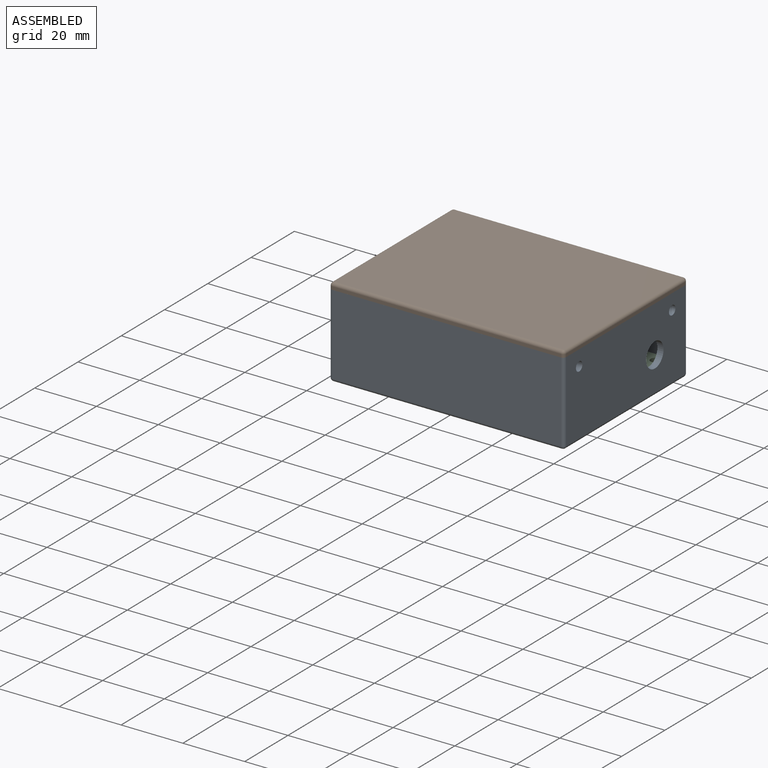
[diagram: assembled view]
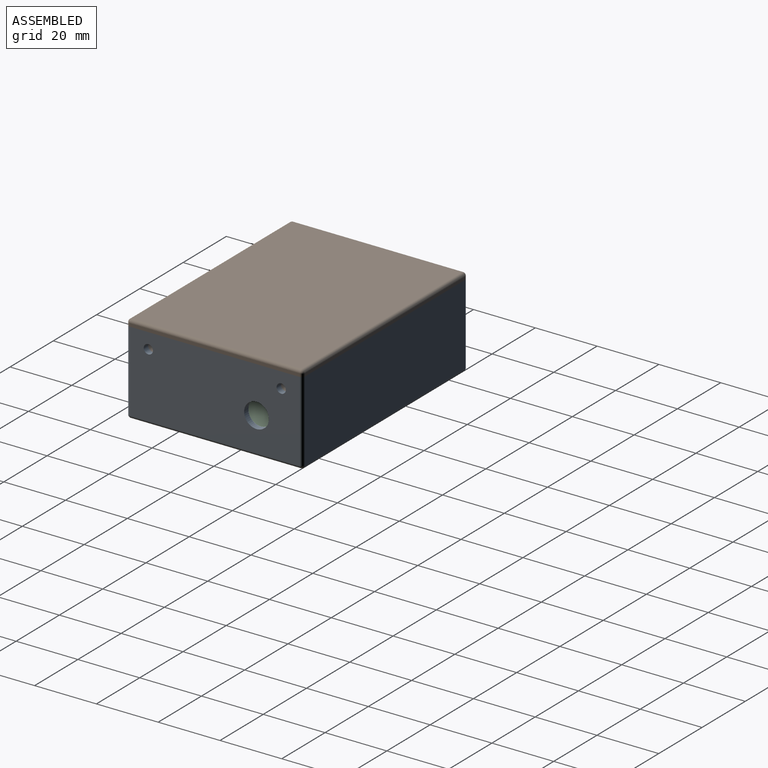
[diagram: assembled view, second angle]
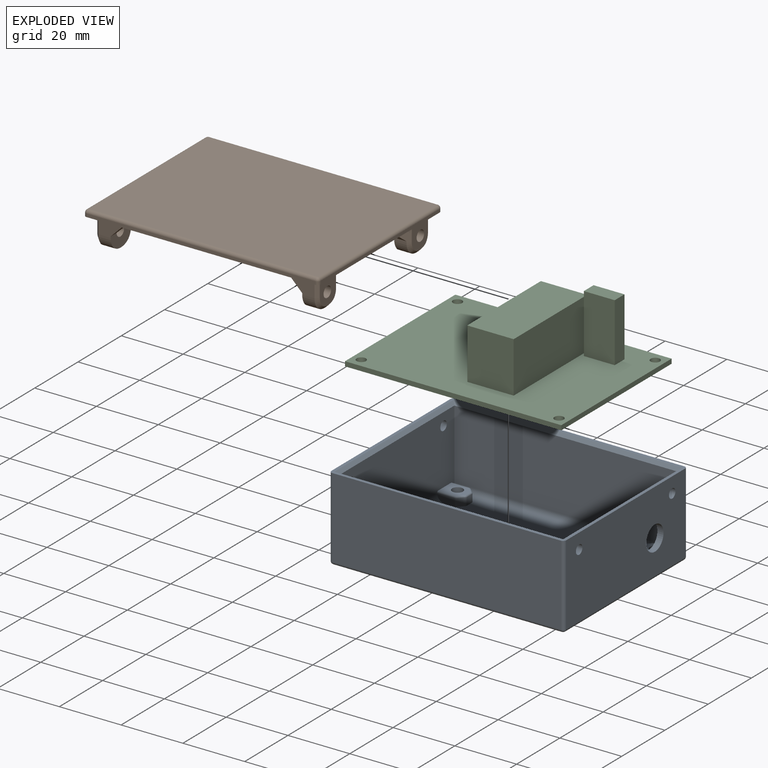
[diagram: exploded view]
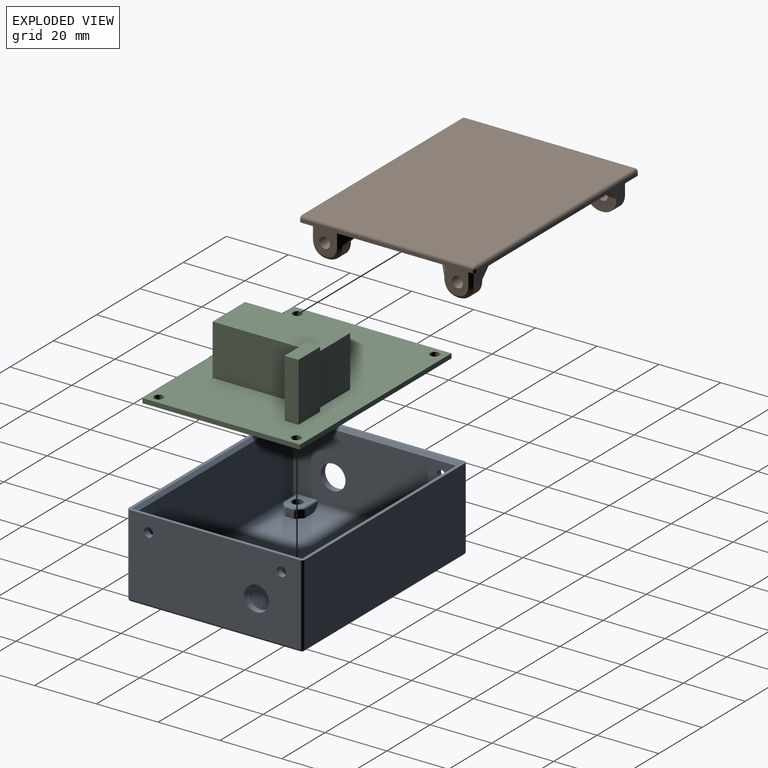
[diagram: exploded view, second angle]
ASSEMBLY  parts=3 mates=4
PART A: 121 faces, bbox 76x57x27 mm
  f0: plane 55x26mm, normal (1,0,0), area 1365.6mm2, adj f5,f42,f43,f44,f107,f108,f113
  f1: plane 53x24.5mm, normal (-1,0,0), area 1124.1mm2, adj f9,f10,f21,f22,f23,f26,f42,f43
  f2: plane 53x24.5mm, normal (1,0,0), area 1124.1mm2, adj f9,f10,f12,f14,f17,f18,f39,f40
  f3: plane 55x26mm, normal (-1,0,0), area 1365.6mm2, adj f5,f39,f40,f41,f105,f106,f112
  f4: plane 67x48mm, normal (0,0,1), area 3103.8mm2, adj f11,f13,f15,f16,f19,f20,f24,f25
  f5: plane 76x57mm, normal (0,0,1), area 261.1mm2, adj f0,f3,f6,f7,f105,f106,f107,f108
  f6: plane 74x26mm, normal (0,1,0), area 1924mm2, adj f5,f105,f108,f109
  f7: plane 74x26mm, normal (0,-1,0), area 1924mm2, adj f5,f106,f107,f116
  f8: plane 74x55mm, normal (0,0,-1), area 4006.4mm2, adj f101,f102,f103,f104,f109,f112,f113,f116
  f9: plane 72x22.5mm, normal (0,-1,0), area 1620mm2, adj f1,f2,f99,f117
  f10: plane 72x22.5mm, normal (0,1,0), area 1620mm2, adj f1,f2,f100,f120
  f11: plane 5.59x2.5mm, normal (0,1,0), area 12.6mm2, adj f4,f48,f79,f98
  f12: plane 5.59x2mm, normal (0,-1,0), area 11.2mm2, adj f2,f52,f87,f100
  f13: plane 2.5x2.17mm, normal (1,0,0), area 5.4mm2, adj f4,f53,f54,f83
  f14: plane 7.5x6mm, normal (0,0,1), area 32.4mm2, adj f2,f30,f79,f80,f81,f82,f83,f84
  f15: plane 5.59x2.5mm, normal (0,-1,0), area 12.6mm2, adj f4,f45,f88,f98
  f16: plane 2.5x2.17mm, normal (1,0,0), area 5.4mm2, adj f4,f49,f50,f92
  f17: plane 5.59x2mm, normal (0,1,0), area 11.2mm2, adj f2,f51,f96,f99
  f18: plane 7.5x6mm, normal (0,0,1), area 32.4mm2, adj f2,f29,f88,f89,f90,f91,f92,f93
  f19: plane 5.59x2.5mm, normal (0,1,0), area 12.6mm2, adj f4,f47,f70,f97
  f20: plane 2.5x2.17mm, normal (-1,0,0), area 5.4mm2, adj f4,f58,f59,f74
  f21: plane 5.59x2mm, normal (0,-1,0), area 11.2mm2, adj f1,f60,f78,f100
  f22: plane 7.5x6mm, normal (0,0,1), area 32.4mm2, adj f1,f28,f70,f71,f72,f73,f74,f75
  f23: plane 5.59x2mm, normal (0,1,0), area 11.2mm2, adj f1,f55,f69,f99
  f24: plane 2.5x2.17mm, normal (-1,0,0), area 5.4mm2, adj f4,f56,f57,f65
  f25: plane 5.59x2.5mm, normal (0,-1,0), area 12.6mm2, adj f4,f46,f61,f97
  f26: plane 7.5x6mm, normal (0,0,1), area 32.4mm2, adj f1,f27,f61,f62,f63,f64,f65,f66
  f27: cylinder r=1.75mm len=3.5mm, axis (0,0,-1), area 38.5mm2, adj f26,f104
  f28: cylinder r=1.75mm len=3.5mm, axis (0,0,-1), area 38.5mm2, adj f22,f103
  f29: cylinder r=1.75mm len=3.5mm, axis (0,0,-1), area 38.5mm2, adj f18,f101
  f30: cylinder r=1.75mm len=3.5mm, axis (0,0,-1), area 38.5mm2, adj f14,f102
  f31: plane 2.5x1.41mm, normal (-0.71,-0.71,0), area 4.8mm2, adj f4,f58,f60,f76,f100
  f32: plane 2.5x1.41mm, normal (-0.71,0.71,0), area 4.8mm2, adj f4,f55,f56,f67,f99
  f33: plane 2.5x1.41mm, normal (0.71,-0.71,0), area 4.8mm2, adj f4,f52,f53,f85,f100
  f34: plane 2.5x1.41mm, normal (0.71,0.71,0), area 4.8mm2, adj f4,f49,f51,f94,f99
  f35: plane 2.5x1.41mm, normal (0.71,0.71,0), area 5mm2, adj f4,f48,f54,f81
  f36: plane 2.5x1.41mm, normal (-0.71,0.71,0), area 5mm2, adj f4,f47,f59,f72
  f37: plane 2.5x1.41mm, normal (-0.71,-0.71,0), area 5mm2, adj f4,f46,f57,f63
  f38: plane 2.5x1.41mm, normal (0.71,-0.71,0), area 5mm2, adj f4,f45,f50,f90
  f39: cylinder r=1.5mm len=3mm, axis (-1,0,0), area 18.8mm2, adj f2,f3
  f40: cylinder r=1.5mm len=3mm, axis (-1,0,0), area 18.8mm2, adj f2,f3
  f41: cylinder r=4mm len=8mm, axis (-1,0,0), area 50.3mm2, adj f2,f3
  f42: cylinder r=1.5mm len=3mm, axis (1,0,0), area 18.8mm2, adj f0,f1
  f43: cylinder r=1.5mm len=3mm, axis (1,0,0), area 18.8mm2, adj f0,f1
  f44: cylinder r=4mm len=8mm, axis (1,0,0), area 50.3mm2, adj f0,f1
  f45: cylinder r=1mm len=2.5mm, axis (0,0,-1), area 2mm2, adj f4,f15,f38,f89
  f46: cylinder r=1mm len=2.5mm, axis (0,0,1), area 2mm2, adj f4,f25,f37,f62
  f47: cylinder r=1mm len=2.5mm, axis (0,0,-1), area 2mm2, adj f4,f19,f36,f71
  f48: cylinder r=1mm len=2.5mm, axis (0,0,-1), area 2mm2, adj f4,f11,f35,f80
  f49: cylinder r=1mm len=2.5mm, axis (0,0,-1), area 2mm2, adj f4,f16,f34,f93
  f50: cylinder r=1mm len=2.5mm, axis (0,0,-1), area 2mm2, adj f4,f16,f38,f91
  f51: cylinder r=1mm len=2.19mm, axis (0,0,1), area 1.6mm2, adj f17,f34,f95,f99
  f52: cylinder r=1mm len=2.19mm, axis (0,0,1), area 1.6mm2, adj f12,f33,f86,f100
  f53: cylinder r=1mm len=2.5mm, axis (0,0,-1), area 2mm2, adj f4,f13,f33,f84
  f54: cylinder r=1mm len=2.5mm, axis (0,0,-1), area 2mm2, adj f4,f13,f35,f82
  f55: cylinder r=1mm len=2.19mm, axis (0,0,-1), area 1.6mm2, adj f23,f32,f68,f99
  f56: cylinder r=1mm len=2.5mm, axis (0,0,1), area 2mm2, adj f4,f24,f32,f66
  f57: cylinder r=1mm len=2.5mm, axis (0,0,1), area 2mm2, adj f4,f24,f37,f64
  f58: cylinder r=1mm len=2.5mm, axis (0,0,-1), area 2mm2, adj f4,f20,f31,f75
  f59: cylinder r=1mm len=2.5mm, axis (0,0,-1), area 2mm2, adj f4,f20,f36,f73
  f60: cylinder r=1mm len=2.19mm, axis (0,0,1), area 1.6mm2, adj f21,f31,f77,f100
  f61: cylinder r=0.5mm len=5.59mm, axis (-1,0,0), area 4.4mm2, adj f1,f25,f26,f62
  f62: torus R=0.5mm, axis (0,0,1), area 0.5mm2, adj f26,f46,f61,f63
  f63: cylinder r=0.5mm len=1.77mm, axis (0.71,-0.71,0), area 1.6mm2, adj f26,f37,f62,f64
  f64: torus R=0.5mm, axis (0,0,1), area 0.5mm2, adj f26,f57,f63,f65
  f65: cylinder r=0.5mm len=2.17mm, axis (0,1,0), area 1.7mm2, adj f24,f26,f64,f66
  f66: torus R=0.5mm, axis (0,0,1), area 0.5mm2, adj f26,f56,f65,f67
  f67: cylinder r=0.5mm len=1.77mm, axis (0.71,0.71,0), area 1.6mm2, adj f26,f32,f66,f68
  f68: torus R=0.5mm, axis (0,0,1), area 0.5mm2, adj f26,f55,f67,f69
  f69: cylinder r=0.5mm len=5.59mm, axis (1,0,0), area 4.4mm2, adj f1,f23,f26,f68
  f70: cylinder r=0.5mm len=5.59mm, axis (1,0,0), area 4.4mm2, adj f1,f19,f22,f71
  f71: torus R=0.5mm, axis (0,0,1), area 0.5mm2, adj f22,f47,f70,f72
  f72: cylinder r=0.5mm len=1.77mm, axis (-0.71,-0.71,0), area 1.6mm2, adj f22,f36,f71,f73
  f73: torus R=0.5mm, axis (0,0,1), area 0.5mm2, adj f22,f59,f72,f74
  f74: cylinder r=0.5mm len=2.17mm, axis (0,1,0), area 1.7mm2, adj f20,f22,f73,f75
  f75: torus R=0.5mm, axis (0,0,1), area 0.5mm2, adj f22,f58,f74,f76
  f76: cylinder r=0.5mm len=1.77mm, axis (-0.71,0.71,0), area 1.6mm2, adj f22,f31,f75,f77
  f77: torus R=0.5mm, axis (0,0,1), area 0.5mm2, adj f22,f60,f76,f78
  f78: cylinder r=0.5mm len=5.59mm, axis (-1,0,0), area 4.4mm2, adj f1,f21,f22,f77
  f79: cylinder r=0.5mm len=5.59mm, axis (1,0,0), area 4.4mm2, adj f2,f11,f14,f80
  f80: torus R=0.5mm, axis (0,0,1), area 0.5mm2, adj f14,f48,f79,f81
  f81: cylinder r=0.5mm len=1.77mm, axis (-0.71,0.71,0), area 1.6mm2, adj f14,f35,f80,f82
  f82: torus R=0.5mm, axis (0,0,1), area 0.5mm2, adj f14,f54,f81,f83
  f83: cylinder r=0.5mm len=2.17mm, axis (0,-1,0), area 1.7mm2, adj f13,f14,f82,f84
  f84: torus R=0.5mm, axis (0,0,1), area 0.5mm2, adj f14,f53,f83,f85
  f85: cylinder r=0.5mm len=1.77mm, axis (-0.71,-0.71,0), area 1.6mm2, adj f14,f33,f84,f86
  f86: torus R=0.5mm, axis (0,0,1), area 0.5mm2, adj f14,f52,f85,f87
  f87: cylinder r=0.5mm len=5.59mm, axis (-1,0,0), area 4.4mm2, adj f2,f12,f14,f86
  f88: cylinder r=0.5mm len=5.59mm, axis (-1,0,0), area 4.4mm2, adj f2,f15,f18,f89
  f89: torus R=0.5mm, axis (0,0,1), area 0.5mm2, adj f18,f45,f88,f90
  f90: cylinder r=0.5mm len=1.77mm, axis (0.71,0.71,0), area 1.6mm2, adj f18,f38,f89,f91
  f91: torus R=0.5mm, axis (0,0,1), area 0.5mm2, adj f18,f50,f90,f92
  f92: cylinder r=0.5mm len=2.17mm, axis (0,-1,0), area 1.7mm2, adj f16,f18,f91,f93
  f93: torus R=0.5mm, axis (0,0,1), area 0.5mm2, adj f18,f49,f92,f94
  f94: cylinder r=0.5mm len=1.77mm, axis (0.71,-0.71,0), area 1.6mm2, adj f18,f34,f93,f95
  f95: torus R=0.5mm, axis (0,0,1), area 0.5mm2, adj f18,f51,f94,f96
  f96: cylinder r=0.5mm len=5.59mm, axis (1,0,0), area 4.4mm2, adj f2,f17,f18,f95
  f97: cylinder r=2.5mm len=37mm, axis (0,1,0), area 145.3mm2, adj f1,f4,f19,f25
  f98: cylinder r=2.5mm len=37mm, axis (0,-1,0), area 145.3mm2, adj f2,f4,f11,f15
  f99: cylinder r=2.5mm len=72mm, axis (-1,0,0), area 261.2mm2, adj f1,f2,f4,f9,f17,f23,f32,f34
  f100: cylinder r=2.5mm len=72mm, axis (1,0,0), area 261.2mm2, adj f1,f2,f4,f10,f12,f21,f31,f33
  f101: cone r=2.25mm half-angle=45deg, axis (0,0,-1), area 8.9mm2, adj f8,f29
  f102: cone r=2.25mm half-angle=45deg, axis (0,0,-1), area 8.9mm2, adj f8,f30
  f103: cone r=2.25mm half-angle=45deg, axis (0,0,-1), area 8.9mm2, adj f8,f28
  f104: cone r=2.25mm half-angle=45deg, axis (0,0,-1), area 8.9mm2, adj f8,f27
  f105: cylinder r=1mm len=26mm, axis (0,0,-1), area 40.8mm2, adj f3,f5,f6,f110
  f106: cylinder r=1mm len=26mm, axis (0,0,1), area 40.8mm2, adj f3,f5,f7,f114
  f107: cylinder r=1mm len=26mm, axis (0,0,-1), area 40.8mm2, adj f0,f5,f7,f115
  f108: cylinder r=1mm len=26mm, axis (0,0,1), area 40.8mm2, adj f0,f5,f6,f111
  f109: cylinder r=1mm len=74mm, axis (-1,0,0), area 116.2mm2, adj f6,f8,f110,f111
  f110: sphere r=1mm, area 1.6mm2, adj f105,f109,f112
  f111: sphere r=1mm, area 1.6mm2, adj f108,f109,f113
  f112: cylinder r=1mm len=55mm, axis (0,-1,0), area 86.4mm2, adj f3,f8,f110,f114
  f113: cylinder r=1mm len=55mm, axis (0,1,0), area 86.4mm2, adj f0,f8,f111,f115
  f114: sphere r=1mm, area 1.6mm2, adj f106,f112,f116
  f115: sphere r=1mm, area 1.6mm2, adj f107,f113,f116
  f116: cylinder r=1mm len=74mm, axis (1,0,0), area 116.2mm2, adj f7,f8,f114,f115
  f117: plane 74x1mm, normal (0,-0.71,0.71), area 103.2mm2, adj f5,f9,f118,f119
  f118: plane 55x1mm, normal (0.71,0,0.71), area 76.4mm2, adj f2,f5,f117,f120
  f119: plane 55x1mm, normal (-0.71,0,0.71), area 76.4mm2, adj f1,f5,f117,f120
  f120: plane 74x1mm, normal (0,0.71,0.71), area 103.2mm2, adj f5,f10,f118,f119
PART B: 102 faces, bbox 76x57x12 mm
  f0: plane 76x57mm, normal (0,0,-1), area 3663.3mm2, adj f1,f2,f3,f4,f6,f9,f11,f14
  f1: plane 74x1mm, normal (0,1,0), area 74mm2, adj f0,f78,f81,f86
  f2: plane 55x1mm, normal (-1,0,0), area 55mm2, adj f0,f78,f79,f89
  f3: plane 74x1mm, normal (0,-1,0), area 74mm2, adj f0,f79,f80,f85
  f4: plane 55x1mm, normal (1,0,0), area 55mm2, adj f0,f80,f81,f82
  f5: plane 74x55mm, normal (0,0,1), area 4070mm2, adj f82,f85,f86,f89
  f6: plane 9x7.5mm, normal (-1,0,0), area 52.8mm2, adj f0,f29,f60,f61,f62,f63,f64,f65
  f7: plane 4x0.43mm, normal (0,1,0), area 1.7mm2, adj f8,f43,f61,f90
  f8: plane 9.5x5mm, normal (1,0,0), area 34.3mm2, adj f7,f9,f10,f29,f42,f43,f44,f45
  f9: plane 11.07x5.43mm, normal (0,-1,0), area 34.8mm2, adj f0,f8,f44,f60,f75,f94
  f10: plane 4x0.36mm, normal (0,0,-1), area 1.4mm2, adj f8,f42,f45,f66
  f11: plane 11.07x5.43mm, normal (0,1,0), area 34.8mm2, adj f0,f12,f39,f46,f74,f96
  f12: plane 9.5x5mm, normal (1,0,0), area 34.3mm2, adj f11,f13,f15,f28,f38,f39,f40,f41
  f13: plane 4x0.43mm, normal (0,-1,0), area 1.7mm2, adj f12,f40,f49,f91
  f14: plane 9x7.5mm, normal (-1,0,0), area 52.8mm2, adj f0,f28,f46,f47,f48,f49,f50,f51
  f15: plane 4x0.36mm, normal (0,0,-1), area 1.4mm2, adj f12,f38,f41,f50
  f16: plane 11.07x5.43mm, normal (0,-1,0), area 34.8mm2, adj f0,f17,f31,f55,f77,f100
  f17: plane 9.5x5mm, normal (-1,0,0), area 34.3mm2, adj f16,f18,f20,f27,f30,f31,f32,f33
  f18: plane 4x0.43mm, normal (0,1,0), area 1.7mm2, adj f17,f32,f53,f93
  f19: plane 9x7.5mm, normal (1,0,0), area 52.8mm2, adj f0,f27,f53,f54,f55,f56,f57,f58
  f20: plane 4x0.36mm, normal (0,0,-1), area 1.4mm2, adj f17,f30,f33,f58
  f21: plane 9x7.5mm, normal (1,0,0), area 52.8mm2, adj f0,f26,f67,f68,f69,f70,f71,f72
  f22: plane 4x0.43mm, normal (0,-1,0), area 1.7mm2, adj f23,f35,f67,f92
  f23: plane 9.5x5mm, normal (-1,0,0), area 34.3mm2, adj f22,f24,f25,f26,f34,f35,f36,f37
  f24: plane 11.07x5.43mm, normal (0,1,0), area 34.8mm2, adj f0,f23,f36,f73,f76,f98
  f25: plane 4x0.36mm, normal (0,0,-1), area 1.4mm2, adj f23,f34,f37,f70
  f26: cylinder r=1.75mm len=6.76mm, axis (-1,0,0), area 61.1mm2, adj f21,f23,f76
  f27: cylinder r=1.75mm len=6.76mm, axis (-1,0,0), area 61.1mm2, adj f17,f19,f77
  f28: cylinder r=1.75mm len=6.76mm, axis (-1,0,0), area 61.1mm2, adj f12,f14,f74
  f29: cylinder r=1.75mm len=6.76mm, axis (-1,0,0), area 61.1mm2, adj f6,f8,f75
  f30: cylinder r=5mm len=4mm, axis (-1,0,0), area 14.5mm2, adj f17,f20,f31,f59
  f31: cylinder r=5mm len=4mm, axis (-1,0,0), area 14.5mm2, adj f16,f17,f30,f57
  f32: cylinder r=5mm len=4mm, axis (1,0,0), area 14.5mm2, adj f17,f18,f33,f54
  f33: cylinder r=5mm len=4mm, axis (-1,0,0), area 14.5mm2, adj f17,f20,f32,f56
  f34: cylinder r=5mm len=4mm, axis (-1,0,0), area 14.5mm2, adj f23,f25,f35,f69
  f35: cylinder r=5mm len=4mm, axis (-1,0,0), area 14.5mm2, adj f22,f23,f34,f68
  f36: cylinder r=5mm len=4mm, axis (1,0,0), area 14.5mm2, adj f23,f24,f37,f72
  f37: cylinder r=5mm len=4mm, axis (-1,0,0), area 14.5mm2, adj f23,f25,f36,f71
  f38: cylinder r=5mm len=4mm, axis (1,0,0), area 14.5mm2, adj f12,f15,f39,f48
  f39: cylinder r=5mm len=4mm, axis (1,0,0), area 14.5mm2, adj f11,f12,f38,f47
  f40: cylinder r=5mm len=4mm, axis (-1,0,0), area 14.5mm2, adj f12,f13,f41,f51
  f41: cylinder r=5mm len=4mm, axis (1,0,0), area 14.5mm2, adj f12,f15,f40,f52
  f42: cylinder r=5mm len=4mm, axis (1,0,0), area 14.5mm2, adj f8,f10,f43,f65
  f43: cylinder r=5mm len=4mm, axis (1,0,0), area 14.5mm2, adj f7,f8,f42,f63
  f44: cylinder r=5mm len=4mm, axis (-1,0,0), area 14.5mm2, adj f8,f9,f45,f62
  f45: cylinder r=5mm len=4mm, axis (1,0,0), area 14.5mm2, adj f8,f10,f44,f64
  f46: plane 5.43x1mm, normal (-0.71,0.71,0), area 7.7mm2, adj f0,f11,f14,f47
  f47: cone r=4mm half-angle=45deg, axis (1,0,0), area 4.6mm2, adj f14,f39,f46,f48
  f48: cone r=4mm half-angle=45deg, axis (1,0,0), area 4.6mm2, adj f14,f38,f47,f50
  f49: plane 8.07x8.07mm, normal (-0.71,-0.71,0), area 26.1mm2, adj f0,f13,f14,f51,f91,f97
  f50: plane 1x1mm, normal (-0.71,0,-0.71), area 0.5mm2, adj f14,f15,f48,f52
  f51: cone r=4mm half-angle=45deg, axis (1,0,0), area 4.6mm2, adj f14,f40,f49,f52
  f52: cone r=4mm half-angle=45deg, axis (1,0,0), area 4.6mm2, adj f14,f41,f50,f51
  f53: plane 8.07x8.07mm, normal (0.71,0.71,0), area 26.1mm2, adj f0,f18,f19,f54,f93,f101
  f54: cone r=4mm half-angle=45deg, axis (-1,0,0), area 4.6mm2, adj f19,f32,f53,f56
  f55: plane 5.43x1mm, normal (0.71,-0.71,0), area 7.7mm2, adj f0,f16,f19,f57
  f56: cone r=4mm half-angle=45deg, axis (-1,0,0), area 4.6mm2, adj f19,f33,f54,f58
  f57: cone r=4mm half-angle=45deg, axis (-1,0,0), area 4.6mm2, adj f19,f31,f55,f59
  f58: plane 1x1mm, normal (0.71,0,-0.71), area 0.5mm2, adj f19,f20,f56,f59
  f59: cone r=4mm half-angle=45deg, axis (-1,0,0), area 4.6mm2, adj f19,f30,f57,f58
  f60: plane 5.43x1mm, normal (-0.71,-0.71,0), area 7.7mm2, adj f0,f6,f9,f62
  f61: plane 8.07x8.07mm, normal (-0.71,0.71,0), area 26.1mm2, adj f0,f6,f7,f63,f90,f95
  f62: cone r=4mm half-angle=45deg, axis (1,0,0), area 4.6mm2, adj f6,f44,f60,f64
  f63: cone r=4mm half-angle=45deg, axis (1,0,0), area 4.6mm2, adj f6,f43,f61,f65
  f64: cone r=4mm half-angle=45deg, axis (1,0,0), area 4.6mm2, adj f6,f45,f62,f66
  f65: cone r=4mm half-angle=45deg, axis (1,0,0), area 4.6mm2, adj f6,f42,f63,f66
  f66: plane 1x1mm, normal (-0.71,0,-0.71), area 0.5mm2, adj f6,f10,f64,f65
  f67: plane 8.07x8.07mm, normal (0.71,-0.71,0), area 26.1mm2, adj f0,f21,f22,f68,f92,f99
  f68: cone r=4mm half-angle=45deg, axis (-1,0,0), area 4.6mm2, adj f21,f35,f67,f69
  f69: cone r=4mm half-angle=45deg, axis (-1,0,0), area 4.6mm2, adj f21,f34,f68,f70
  f70: plane 1x1mm, normal (0.71,0,-0.71), area 0.5mm2, adj f21,f25,f69,f71
  f71: cone r=4mm half-angle=45deg, axis (-1,0,0), area 4.6mm2, adj f21,f37,f70,f72
  f72: cone r=4mm half-angle=45deg, axis (-1,0,0), area 4.6mm2, adj f21,f36,f71,f73
  f73: plane 5.43x1mm, normal (0.71,0.71,0), area 7.7mm2, adj f0,f21,f24,f72
  f74: plane 13.04x3.54mm, normal (0.71,0,-0.71), area 49.5mm2, adj f11,f12,f28,f91,f96
  f75: plane 13.04x3.54mm, normal (0.71,0,-0.71), area 49.5mm2, adj f8,f9,f29,f90,f94
  f76: plane 13.04x3.54mm, normal (-0.71,0,-0.71), area 49.5mm2, adj f23,f24,f26,f92,f98
  f77: plane 13.04x3.54mm, normal (-0.71,0,-0.71), area 49.5mm2, adj f16,f17,f27,f93,f100
  f78: cylinder r=1mm len=1mm, axis (0,0,-1), area 1.6mm2, adj f0,f1,f2,f88
  f79: cylinder r=1mm len=1mm, axis (0,0,1), area 1.6mm2, adj f0,f2,f3,f87
  f80: cylinder r=1mm len=1mm, axis (0,0,-1), area 1.6mm2, adj f0,f3,f4,f83
  f81: cylinder r=1mm len=1mm, axis (0,0,1), area 1.6mm2, adj f0,f1,f4,f84
  f82: cylinder r=1mm len=55mm, axis (0,-1,0), area 86.4mm2, adj f4,f5,f83,f84
  f83: sphere r=1mm, area 1.6mm2, adj f80,f82,f85
  f84: sphere r=1mm, area 1.6mm2, adj f81,f82,f86
  f85: cylinder r=1mm len=74mm, axis (-1,0,0), area 116.2mm2, adj f3,f5,f83,f87
  f86: cylinder r=1mm len=74mm, axis (1,0,0), area 116.2mm2, adj f1,f5,f84,f88
  f87: sphere r=1mm, area 1.6mm2, adj f79,f85,f89
  f88: sphere r=1mm, area 1.6mm2, adj f78,f86,f89
  f89: cylinder r=1mm len=55mm, axis (0,1,0), area 86.4mm2, adj f2,f5,f87,f88
  f90: plane 7.54x3.54mm, normal (0,0.71,-0.71), area 20mm2, adj f7,f61,f75,f95
  f91: plane 7.54x3.54mm, normal (0,-0.71,-0.71), area 20mm2, adj f13,f49,f74,f97
  f92: plane 7.54x3.54mm, normal (0,-0.71,-0.71), area 20mm2, adj f22,f67,f76,f99
  f93: plane 7.54x3.54mm, normal (0,0.71,-0.71), area 20mm2, adj f18,f53,f77,f101
  f94: cylinder r=5mm len=16.57mm, axis (0,-1,0), area 57.8mm2, adj f0,f9,f75,f95
  f95: cylinder r=5mm len=7.54mm, axis (-1,0,0), area 15.7mm2, adj f0,f61,f90,f94
  f96: cylinder r=5mm len=16.57mm, axis (0,1,0), area 57.8mm2, adj f0,f11,f74,f97
  f97: cylinder r=5mm len=7.54mm, axis (-1,0,0), area 15.7mm2, adj f0,f49,f91,f96
  f98: cylinder r=5mm len=16.57mm, axis (0,1,0), area 57.8mm2, adj f0,f24,f76,f99
  f99: cylinder r=5mm len=7.54mm, axis (1,0,0), area 15.7mm2, adj f0,f67,f92,f98
  f100: cylinder r=5mm len=16.57mm, axis (0,-1,0), area 57.8mm2, adj f0,f16,f77,f101
  f101: cylinder r=5mm len=7.54mm, axis (1,0,0), area 15.7mm2, adj f0,f53,f93,f100
PART C: 20 faces, bbox 70x51x20.5 mm
  f0: plane 70x51mm, normal (0,0,1), area 2986.7mm2, adj f1,f2,f3,f4,f6,f7,f8,f9
  f1: plane 70x1.5mm, normal (0,1,0), area 105mm2, adj f0,f2,f4,f5
  f2: plane 51x1.5mm, normal (-1,0,0), area 76.5mm2, adj f0,f1,f3,f5
  f3: plane 70x1.5mm, normal (0,-1,0), area 105mm2, adj f0,f2,f4,f5
  f4: plane 51x1.5mm, normal (1,0,0), area 76.5mm2, adj f0,f1,f3,f5
  f5: plane 70x51mm, normal (0,0,-1), area 3541.7mm2, adj f1,f2,f3,f4,f6,f7,f8,f9
  f6: cylinder r=1.5mm len=3mm, axis (0,0,1), area 14.1mm2, adj f0,f5
  f7: cylinder r=1.5mm len=3mm, axis (0,0,1), area 14.1mm2, adj f0,f5
  f8: cylinder r=1.5mm len=3mm, axis (0,0,1), area 14.1mm2, adj f0,f5
  f9: cylinder r=1.5mm len=3mm, axis (0,0,1), area 14.1mm2, adj f0,f5
  f10: plane 34x16.5mm, normal (-1,0,0), area 561mm2, adj f0,f11,f13,f14
  f11: plane 16.5x15mm, normal (0,-1,0), area 247.5mm2, adj f0,f10,f12,f14
  f12: plane 34x16.5mm, normal (1,0,0), area 561mm2, adj f0,f11,f13,f14
  f13: plane 16.5x15mm, normal (0,1,0), area 247.5mm2, adj f0,f10,f12,f14
  f14: plane 34x15mm, normal (0,0,1), area 510mm2, adj f10,f11,f12,f13
  f15: plane 19x4.5mm, normal (-1,0,0), area 85.5mm2, adj f0,f16,f18,f19
  f16: plane 19x10mm, normal (0,-1,0), area 190mm2, adj f0,f15,f17,f19
  f17: plane 19x4.5mm, normal (1,0,0), area 85.5mm2, adj f0,f16,f18,f19
  f18: plane 19x10mm, normal (0,1,0), area 190mm2, adj f0,f15,f17,f19
  f19: plane 10x4.5mm, normal (0,0,1), area 45mm2, adj f15,f16,f17,f18
PLACE A t=(-8.71,-6.49,-7.11)mm fixed
PLACE B t=(-10.71,-8.49,19.89)mm
PLACE C t=(-7.71,-5.49,-3.11)mm
MATE revolute A.f30 <-> C.f7  axis (0,0,1) through (-4.71,-2.24,-3.11)mm
MATE revolute B.f26 <-> A.f42  axis (-1,0,0) through (-8.71,41.51,14.89)mm
MATE revolute A.f27 <-> C.f6  axis (0,0,1) through (59.29,42.26,-3.11)mm
MATE revolute A.f39 <-> B.f27  axis (-1,0,0) through (63.29,-1.49,14.89)mm
